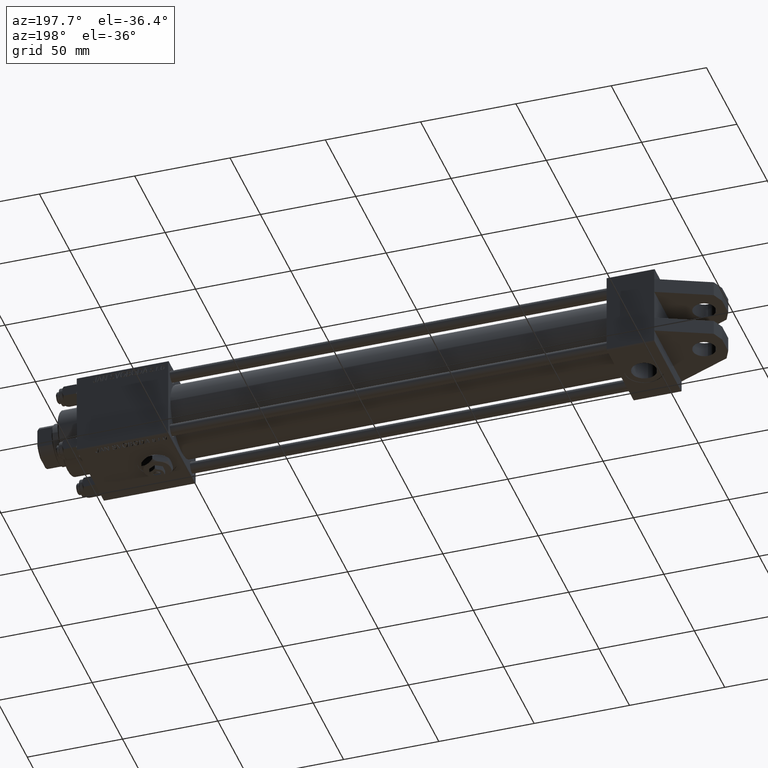
[diagram: clean part render]
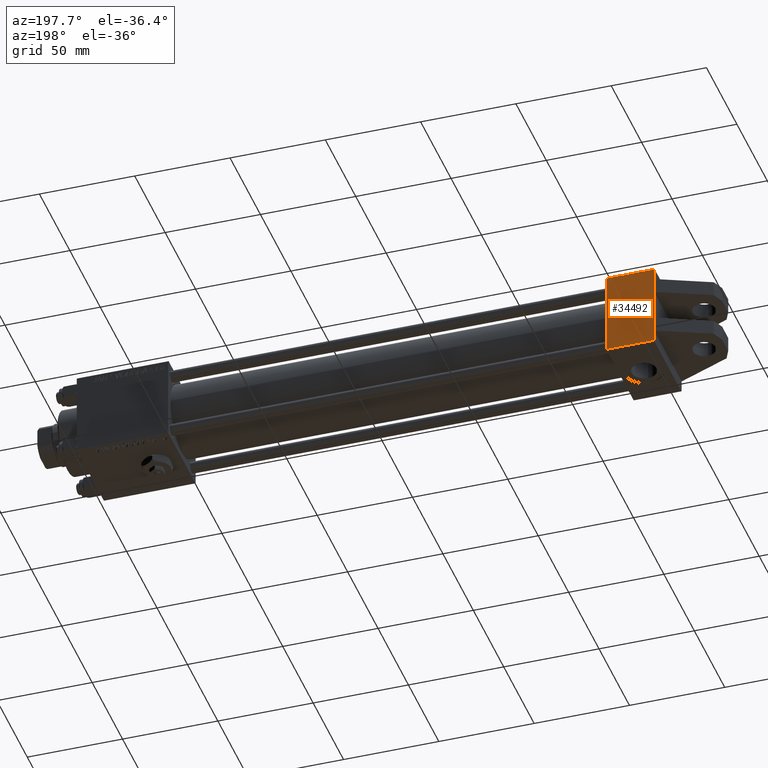
[diagram: same view with one face highlighted and labeled with its STEP entity id]
A machine part, auxiliary view. The second image highlights one B-rep face of the part: STEP entity #34492.
In plain terms, the highlighted planar face has unit normal (0, -1, -0).
Its self-contained STEP definition (entity closure, byte-faithful):
#1973 = ORIENTED_EDGE ( 'NONE', *, *, #49156, .F. ) ;
#2331 = DIRECTION ( 'NONE',  ( 0.000000000000000000, -1.000000000000000000, -7.709882115452476934E-17 ) ) ;
#3775 = AXIS2_PLACEMENT_3D ( 'NONE', #15793, #24153, #39586 ) ;
#3872 = DIRECTION ( 'NONE',  ( -0.000000000000000000, 1.000000000000000000, -0.000000000000000000 ) ) ;
#6026 = VECTOR ( 'NONE', #22732, 1000.000000000000000 ) ;
#6765 = LINE ( 'NONE', #33985, #6026 ) ;
#7918 = PLANE ( 'NONE',  #3775 ) ;
#8575 = VERTEX_POINT ( 'NONE', #15946 ) ;
#8707 = CARTESIAN_POINT ( 'NONE',  ( 0.000000000000000000, 22.50000000000000000, 22.50000000000000355 ) ) ;
#10374 = VERTEX_POINT ( 'NONE', #23404 ) ;
#10479 = ORIENTED_EDGE ( 'NONE', *, *, #10486, .T. ) ;
#10486 = EDGE_CURVE ( 'NONE', #17417, #34385, #16319, .T. ) ;
#11223 = LINE ( 'NONE', #32118, #27443 ) ;
#11420 = DIRECTION ( 'NONE',  ( 1.000000000000000000, 0.000000000000000000, 0.000000000000000000 ) ) ;
#11589 = VECTOR ( 'NONE', #34956, 1000.000000000000000 ) ;
#12580 = VERTEX_POINT ( 'NONE', #14793 ) ;
#13589 = VERTEX_POINT ( 'NONE', #46926 ) ;
#14038 = CARTESIAN_POINT ( 'NONE',  ( 0.000000000000000000, 8.000000000000003553, 22.50000000000000355 ) ) ;
#14661 = VECTOR ( 'NONE', #2331, 1000.000000000000000 ) ;
#14793 = CARTESIAN_POINT ( 'NONE',  ( 0.000000000000000000, 21.99999999999999289, 22.50000000000000355 ) ) ;
#15778 = VERTEX_POINT ( 'NONE', #29518 ) ;
#15793 = CARTESIAN_POINT ( 'NONE',  ( 25.00000000000000000, 22.50000000000000000, 22.50000000000000355 ) ) ;
#15946 = CARTESIAN_POINT ( 'NONE',  ( 25.00000000000000000, 21.99999999999999289, 22.50000000000000355 ) ) ;
#15997 = ORIENTED_EDGE ( 'NONE', *, *, #24026, .T. ) ;
#16303 = FACE_OUTER_BOUND ( 'NONE', #22540, .T. ) ;
#16319 = LINE ( 'NONE', #8707, #24930 ) ;
#17303 = CARTESIAN_POINT ( 'NONE',  ( 0.000000000000000000, 21.99999999999999289, 22.50000000000000355 ) ) ;
#17417 = VERTEX_POINT ( 'NONE', #14038 ) ;
#18457 = EDGE_CURVE ( 'NONE', #13589, #17417, #6765, .T. ) ;
#18525 = ORIENTED_EDGE ( 'NONE', *, *, #48754, .T. ) ;
#18739 = LINE ( 'NONE', #34689, #49486 ) ;
#19512 = CARTESIAN_POINT ( 'NONE',  ( 25.00000000000000000, 22.50000000000000000, 22.50000000000000355 ) ) ;
#21221 = LINE ( 'NONE', #17303, #47543 ) ;
#22540 = EDGE_LOOP ( 'NONE', ( #18525, #51520, #10479, #37276, #38223, #15997, #1973, #37790 ) ) ;
#22732 = DIRECTION ( 'NONE',  ( -0.000000000000000000, -1.000000000000000000, -0.000000000000000000 ) ) ;
#23404 = CARTESIAN_POINT ( 'NONE',  ( 0.000000000000000000, -21.99999999999997868, 22.50000000000000000 ) ) ;
#24026 = EDGE_CURVE ( 'NONE', #10374, #39529, #18739, .T. ) ;
#24153 = DIRECTION ( 'NONE',  ( 0.000000000000000000, 7.709882115452476934E-17, -1.000000000000000000 ) ) ;
#24930 = VECTOR ( 'NONE', #32272, 1000.000000000000000 ) ;
#26261 = CARTESIAN_POINT ( 'NONE',  ( 0.000000000000000000, -8.000000000000000000, 22.50000000000000000 ) ) ;
#27443 = VECTOR ( 'NONE', #3872, 1000.000000000000000 ) ;
#29518 = CARTESIAN_POINT ( 'NONE',  ( 0.000000000000000000, -15.99999999999999289, 22.50000000000000000 ) ) ;
#30320 = DIRECTION ( 'NONE',  ( 0.000000000000000000, -1.000000000000000000, -7.709882115452476934E-17 ) ) ;
#30576 = CARTESIAN_POINT ( 'NONE',  ( 0.000000000000000000, 22.50000000000000000, 22.50000000000000355 ) ) ;
#32118 = CARTESIAN_POINT ( 'NONE',  ( 0.000000000000000000, -16.00000000000000000, 22.50000000000000000 ) ) ;
#32272 = DIRECTION ( 'NONE',  ( 0.000000000000000000, -1.000000000000000000, -7.709882115452476934E-17 ) ) ;
#33985 = CARTESIAN_POINT ( 'NONE',  ( 0.000000000000000000, 16.00000000000000000, 22.50000000000000000 ) ) ;
#33992 = LINE ( 'NONE', #50425, #14661 ) ;
#34239 = EDGE_CURVE ( 'NONE', #15778, #10374, #33992, .T. ) ;
#34385 = VERTEX_POINT ( 'NONE', #26261 ) ;
#34492 = ADVANCED_FACE ( 'NONE', ( #16303 ), #7918, .F. ) ;
#34689 = CARTESIAN_POINT ( 'NONE',  ( 25.00000000000000000, -21.99999999999999289, 22.50000000000000000 ) ) ;
#34956 = DIRECTION ( 'NONE',  ( 0.000000000000000000, -1.000000000000000000, -7.709882115452476934E-17 ) ) ;
#37276 = ORIENTED_EDGE ( 'NONE', *, *, #48791, .F. ) ;
#37790 = ORIENTED_EDGE ( 'NONE', *, *, #47670, .T. ) ;
#38223 = ORIENTED_EDGE ( 'NONE', *, *, #34239, .T. ) ;
#38527 = CARTESIAN_POINT ( 'NONE',  ( 25.00000000000000000, -21.99999999999997868, 22.50000000000000000 ) ) ;
#39529 = VERTEX_POINT ( 'NONE', #38527 ) ;
#39586 = DIRECTION ( 'NONE',  ( 0.000000000000000000, 1.000000000000000000, 7.709882115452476934E-17 ) ) ;
#46762 = LINE ( 'NONE', #30576, #47460 ) ;
#46926 = CARTESIAN_POINT ( 'NONE',  ( 0.000000000000000000, 16.00000000000000000, 22.50000000000000355 ) ) ;
#47460 = VECTOR ( 'NONE', #30320, 1000.000000000000000 ) ;
#47467 = LINE ( 'NONE', #19512, #11589 ) ;
#47543 = VECTOR ( 'NONE', #48921, 1000.000000000000000 ) ;
#47670 = EDGE_CURVE ( 'NONE', #8575, #12580, #21221, .T. ) ;
#48754 = EDGE_CURVE ( 'NONE', #12580, #13589, #46762, .T. ) ;
#48791 = EDGE_CURVE ( 'NONE', #15778, #34385, #11223, .T. ) ;
#48921 = DIRECTION ( 'NONE',  ( -1.000000000000000000, 0.000000000000000000, 0.000000000000000000 ) ) ;
#49156 = EDGE_CURVE ( 'NONE', #8575, #39529, #47467, .T. ) ;
#49486 = VECTOR ( 'NONE', #11420, 1000.000000000000000 ) ;
#50425 = CARTESIAN_POINT ( 'NONE',  ( 0.000000000000000000, 22.50000000000000000, 22.50000000000000355 ) ) ;
#51520 = ORIENTED_EDGE ( 'NONE', *, *, #18457, .T. ) ;